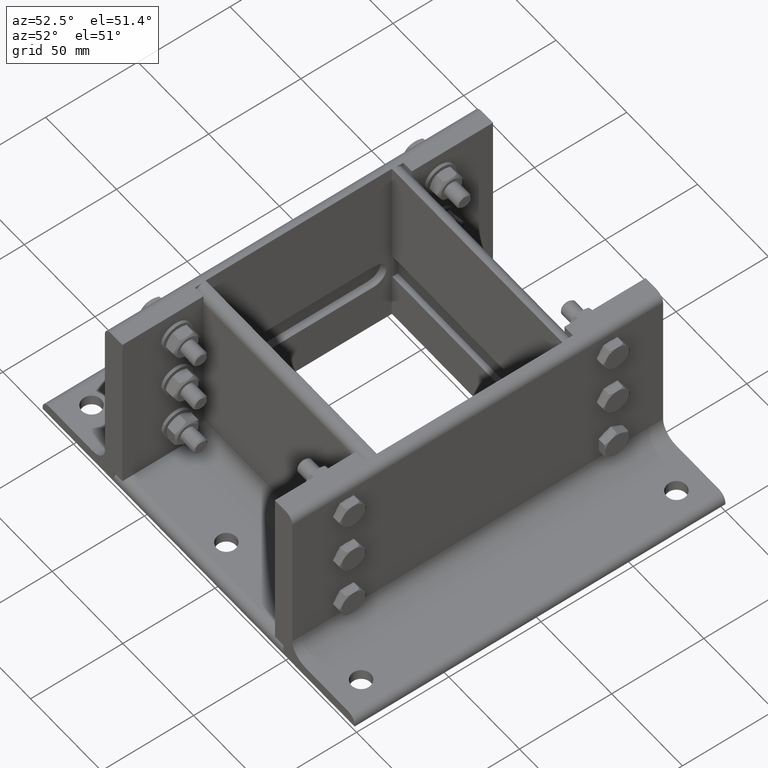
[diagram: clean part render]
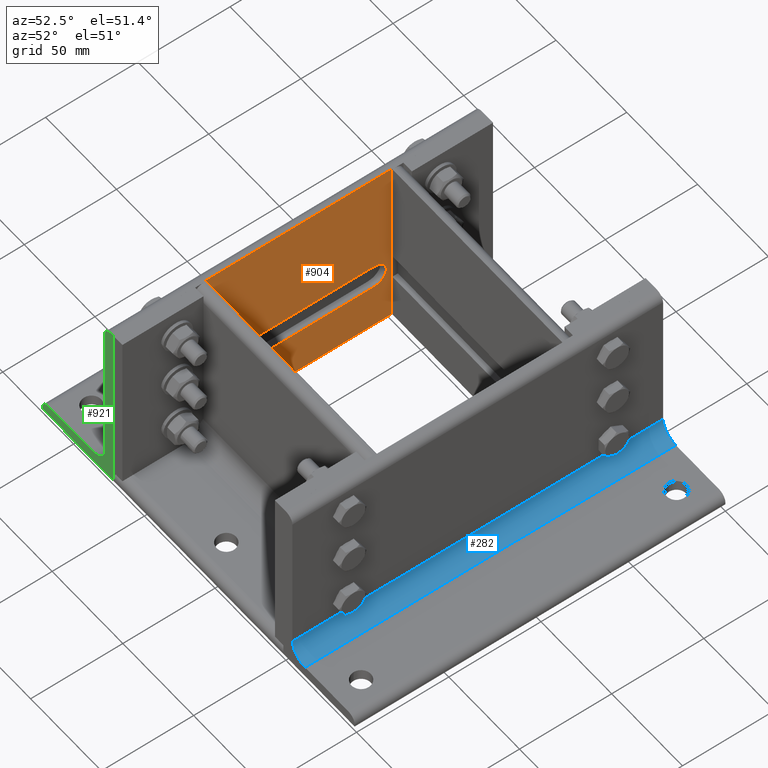
[diagram: same view with three faces highlighted in distinct colors, each labeled with its STEP entity id]
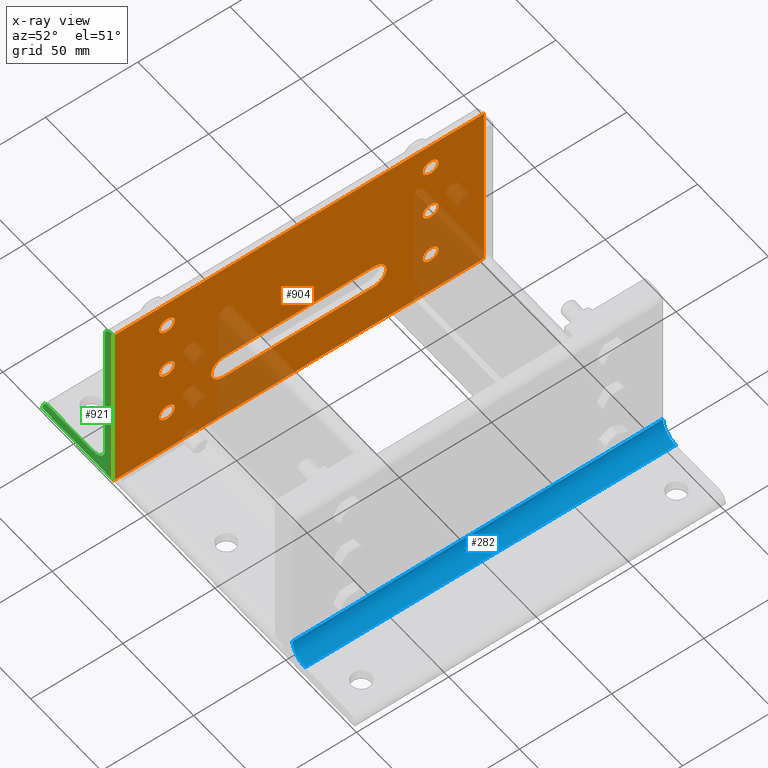
[diagram: x-ray of the same camera — body ghosted, the three highlighted faces saturated]
A machine part, auxiliary view with three faces highlighted in distinct colors.
The next image is the same camera in x-ray (body ghosted, the three faces saturated) — at least one of them is partly hidden behind the body in this view.
Their STEP definitions:

[orange] entity #904 — the highlighted planar face has unit normal (1, -0, 0).
#409=CARTESIAN_POINT('',(1.221245E-014,0.0,100.0));
#410=VERTEX_POINT('',#409);
#417=CARTESIAN_POINT('',(0.0,0.0,0.0));
#418=VERTEX_POINT('',#417);
#419=CARTESIAN_POINT('',(1.221245E-014,0.0,100.0));
#420=DIRECTION('',(0.0,0.0,-1.0));
#421=VECTOR('',#420,100.0);
#422=LINE('',#419,#421);
#423=EDGE_CURVE('',#410,#418,#422,.T.);
#473=CARTESIAN_POINT('',(1.221245E-014,201.0,100.0));
#474=VERTEX_POINT('',#473);
#481=CARTESIAN_POINT('',(1.221245E-014,0.0,100.0));
#482=DIRECTION('',(0.0,1.0,0.0));
#483=VECTOR('',#482,201.0);
#484=LINE('',#481,#483);
#485=EDGE_CURVE('',#410,#474,#484,.T.);
#507=CARTESIAN_POINT('',(7.235879E-015,172.00000000000003,59.249999999999986));
#508=VERTEX_POINT('',#507);
#509=CARTESIAN_POINT('',(0.0,172.00000000000003,55.0));
#510=DIRECTION('',(1.0,0.0,0.0));
#511=DIRECTION('',(0.0,0.0,-1.0));
#512=AXIS2_PLACEMENT_3D('',#509,#510,#511);
#513=CIRCLE('',#512,4.249999999999989);
#514=EDGE_CURVE('',#508,#508,#513,.T.);
#535=CARTESIAN_POINT('',(1.089961E-014,29.000000000000004,89.249999999999986));
#536=VERTEX_POINT('',#535);
#537=CARTESIAN_POINT('',(0.0,29.000000000000004,85.0));
#538=DIRECTION('',(1.0,0.0,0.0));
#539=DIRECTION('',(0.0,0.0,-1.0));
#540=AXIS2_PLACEMENT_3D('',#537,#538,#539);
#541=CIRCLE('',#540,4.249999999999997);
#542=EDGE_CURVE('',#536,#536,#541,.T.);
#563=CARTESIAN_POINT('',(3.572143E-015,29.000000000000014,29.250000000000004));
#564=VERTEX_POINT('',#563);
#565=CARTESIAN_POINT('',(0.0,29.000000000000014,25.0));
#566=DIRECTION('',(1.0,0.0,0.0));
#567=DIRECTION('',(0.0,0.0,-1.0));
#568=AXIS2_PLACEMENT_3D('',#565,#566,#567);
#569=CIRCLE('',#568,4.250000000000001);
#570=EDGE_CURVE('',#564,#564,#569,.T.);
#591=CARTESIAN_POINT('',(7.235879E-015,29.000000000000004,59.25));
#592=VERTEX_POINT('',#591);
#593=CARTESIAN_POINT('',(0.0,29.000000000000004,55.0));
#594=DIRECTION('',(1.0,0.0,0.0));
#595=DIRECTION('',(0.0,0.0,-1.0));
#596=AXIS2_PLACEMENT_3D('',#593,#594,#595);
#597=CIRCLE('',#596,4.25);
#598=EDGE_CURVE('',#592,#592,#597,.T.);
#619=CARTESIAN_POINT('',(3.572143E-015,172.00000000000003,29.249999999999989));
#620=VERTEX_POINT('',#619);
#621=CARTESIAN_POINT('',(0.0,172.00000000000003,25.0));
#622=DIRECTION('',(1.0,0.0,0.0));
#623=DIRECTION('',(0.0,0.0,-1.0));
#624=AXIS2_PLACEMENT_3D('',#621,#622,#623);
#625=CIRCLE('',#624,4.249999999999989);
#626=EDGE_CURVE('',#620,#620,#625,.T.);
#647=CARTESIAN_POINT('',(1.089961E-014,172.00000000000003,89.249999999999986));
#648=VERTEX_POINT('',#647);
#649=CARTESIAN_POINT('',(0.0,172.00000000000003,85.0));
#650=DIRECTION('',(1.0,0.0,0.0));
#651=DIRECTION('',(0.0,0.0,-1.0));
#652=AXIS2_PLACEMENT_3D('',#649,#650,#651);
#653=CIRCLE('',#652,4.249999999999991);
#654=EDGE_CURVE('',#648,#648,#653,.T.);
#664=CARTESIAN_POINT('',(3.175238E-015,60.0,26.000000000000032));
#665=VERTEX_POINT('',#664);
#666=CARTESIAN_POINT('',(3.175238E-015,141.0,26.0));
#667=VERTEX_POINT('',#666);
#668=CARTESIAN_POINT('',(3.175238E-015,60.0,26.000000000000032));
#669=DIRECTION('',(0.0,1.0,0.0));
#670=VECTOR('',#669,81.000000000000028);
#671=LINE('',#668,#670);
#672=EDGE_CURVE('',#665,#667,#671,.T.);
#704=CARTESIAN_POINT('',(4.884981E-015,60.0,40.000000000000014));
#705=VERTEX_POINT('',#704);
#706=CARTESIAN_POINT('',(0.0,60.0,33.000000000000028));
#707=DIRECTION('',(1.0,0.0,0.0));
#708=DIRECTION('',(0.0,0.0,1.0));
#709=AXIS2_PLACEMENT_3D('',#706,#707,#708);
#710=CIRCLE('',#709,6.999999999999998);
#711=EDGE_CURVE('',#705,#665,#710,.T.);
#737=CARTESIAN_POINT('',(4.884981E-015,141.0,40.000000000000007));
#738=VERTEX_POINT('',#737);
#739=CARTESIAN_POINT('',(4.884981E-015,141.0,40.000000000000007));
#740=DIRECTION('',(0.0,-1.0,0.0));
#741=VECTOR('',#740,81.0);
#742=LINE('',#739,#741);
#743=EDGE_CURVE('',#738,#705,#742,.T.);
#768=CARTESIAN_POINT('',(0.0,141.0,33.0));
#769=DIRECTION('',(1.0,0.0,0.0));
#770=DIRECTION('',(0.0,0.0,-1.0));
#771=AXIS2_PLACEMENT_3D('',#768,#769,#770);
#772=CIRCLE('',#771,6.999999999999991);
#773=EDGE_CURVE('',#667,#738,#772,.T.);
#805=CARTESIAN_POINT('',(0.0,201.0,0.0));
#806=VERTEX_POINT('',#805);
#807=CARTESIAN_POINT('',(0.0,0.0,0.0));
#808=DIRECTION('',(0.0,1.0,0.0));
#809=VECTOR('',#808,201.0);
#810=LINE('',#807,#809);
#811=EDGE_CURVE('',#418,#806,#810,.T.);
#864=CARTESIAN_POINT('',(0.0,0.0,0.0));
#865=DIRECTION('',(-1.0,0.0,0.0));
#866=DIRECTION('',(0.0,0.0,1.0));
#867=AXIS2_PLACEMENT_3D('',#864,#865,#866);
#868=PLANE('',#867);
#869=ORIENTED_EDGE('',*,*,#423,.F.);
#870=ORIENTED_EDGE('',*,*,#485,.T.);
#871=CARTESIAN_POINT('',(-1.577722E-030,201.0,0.0));
#872=DIRECTION('',(0.0,0.0,1.0));
#873=VECTOR('',#872,100.0);
#874=LINE('',#871,#873);
#875=EDGE_CURVE('',#806,#474,#874,.T.);
#876=ORIENTED_EDGE('',*,*,#875,.F.);
#877=ORIENTED_EDGE('',*,*,#811,.F.);
#878=EDGE_LOOP('',(#869,#870,#876,#877));
#879=FACE_OUTER_BOUND('',#878,.T.);
#880=ORIENTED_EDGE('',*,*,#514,.T.);
#881=EDGE_LOOP('',(#880));
#882=FACE_BOUND('',#881,.T.);
#883=ORIENTED_EDGE('',*,*,#542,.T.);
#884=EDGE_LOOP('',(#883));
#885=FACE_BOUND('',#884,.T.);
#886=ORIENTED_EDGE('',*,*,#570,.T.);
#887=EDGE_LOOP('',(#886));
#888=FACE_BOUND('',#887,.T.);
#889=ORIENTED_EDGE('',*,*,#598,.T.);
#890=EDGE_LOOP('',(#889));
#891=FACE_BOUND('',#890,.T.);
#892=ORIENTED_EDGE('',*,*,#626,.T.);
#893=EDGE_LOOP('',(#892));
#894=FACE_BOUND('',#893,.T.);
#895=ORIENTED_EDGE('',*,*,#654,.T.);
#896=EDGE_LOOP('',(#895));
#897=FACE_BOUND('',#896,.T.);
#898=ORIENTED_EDGE('',*,*,#672,.T.);
#899=ORIENTED_EDGE('',*,*,#773,.T.);
#900=ORIENTED_EDGE('',*,*,#743,.T.);
#901=ORIENTED_EDGE('',*,*,#711,.T.);
#902=EDGE_LOOP('',(#898,#899,#900,#901));
#903=FACE_BOUND('',#902,.T.);
#904=ADVANCED_FACE('',(#879,#882,#885,#888,#891,#894,#897,#903),#868,.T.);

[blue] entity #282 — the highlighted cylindrical surface (edge-blend (fillet) strip) has radius 9 mm, axis along (0, 1, -0).
#241=CARTESIAN_POINT('',(15.0,0.0,15.0));
#242=DIRECTION('',(0.0,1.0,0.0));
#243=DIRECTION('',(-0.707106781186548,0.0,-0.707106781186547));
#244=AXIS2_PLACEMENT_3D('',#241,#242,#243);
#245=CYLINDRICAL_SURFACE('',#244,9.0);
#246=CARTESIAN_POINT('',(5.999999999999998,0.0,15.000000000000002));
#247=VERTEX_POINT('',#246);
#248=CARTESIAN_POINT('',(15.0,0.0,6.000000000000001));
#249=VERTEX_POINT('',#248);
#250=CARTESIAN_POINT('',(15.0,0.0,15.0));
#251=DIRECTION('',(0.0,-1.0,0.0));
#252=DIRECTION('',(-0.707106781186548,0.0,-0.707106781186547));
#253=AXIS2_PLACEMENT_3D('',#250,#251,#252);
#254=CIRCLE('',#253,9.0);
#255=EDGE_CURVE('',#247,#249,#254,.T.);
#256=ORIENTED_EDGE('',*,*,#255,.T.);
#257=CARTESIAN_POINT('',(15.0,201.0,6.000000000000001));
#258=VERTEX_POINT('',#257);
#259=CARTESIAN_POINT('',(14.999999999999998,0.0,6.000000000000001));
#260=DIRECTION('',(0.0,1.0,0.0));
#261=VECTOR('',#260,201.0);
#262=LINE('',#259,#261);
#263=EDGE_CURVE('',#249,#258,#262,.T.);
#264=ORIENTED_EDGE('',*,*,#263,.T.);
#265=CARTESIAN_POINT('',(5.999999999999998,201.0,15.000000000000002));
#266=VERTEX_POINT('',#265);
#267=CARTESIAN_POINT('',(15.0,201.0,15.0));
#268=DIRECTION('',(0.0,1.0,0.0));
#269=DIRECTION('',(-0.707106781186548,0.0,-0.707106781186547));
#270=AXIS2_PLACEMENT_3D('',#267,#268,#269);
#271=CIRCLE('',#270,9.0);
#272=EDGE_CURVE('',#258,#266,#271,.T.);
#273=ORIENTED_EDGE('',*,*,#272,.T.);
#274=CARTESIAN_POINT('',(5.999999999999998,201.0,15.000000000000002));
#275=DIRECTION('',(0.0,-1.0,0.0));
#276=VECTOR('',#275,201.0);
#277=LINE('',#274,#276);
#278=EDGE_CURVE('',#266,#247,#277,.T.);
#279=ORIENTED_EDGE('',*,*,#278,.T.);
#280=EDGE_LOOP('',(#256,#264,#273,#279));
#281=FACE_OUTER_BOUND('',#280,.T.);
#282=ADVANCED_FACE('',(#281),#245,.F.);

[green] entity #921 — the highlighted planar face has unit normal (-0, -1, -0).
#257=CARTESIAN_POINT('',(15.0,201.0,6.000000000000001));
#258=VERTEX_POINT('',#257);
#265=CARTESIAN_POINT('',(5.999999999999998,201.0,15.000000000000002));
#266=VERTEX_POINT('',#265);
#267=CARTESIAN_POINT('',(15.0,201.0,15.0));
#268=DIRECTION('',(0.0,1.0,0.0));
#269=DIRECTION('',(-0.707106781186548,0.0,-0.707106781186547));
#270=AXIS2_PLACEMENT_3D('',#267,#268,#269);
#271=CIRCLE('',#270,9.0);
#272=EDGE_CURVE('',#258,#266,#271,.T.);
#297=CARTESIAN_POINT('',(45.499999999999986,201.0,5.999999999999991));
#298=VERTEX_POINT('',#297);
#305=CARTESIAN_POINT('',(15.0,201.0,6.0));
#306=DIRECTION('',(1.0,0.0,0.0));
#307=VECTOR('',#306,30.499999999999993);
#308=LINE('',#305,#307);
#309=EDGE_CURVE('',#258,#298,#308,.T.);
#325=CARTESIAN_POINT('',(49.999999999999993,201.0,1.499999999999991));
#326=VERTEX_POINT('',#325);
#327=CARTESIAN_POINT('',(45.499999999999986,201.0,1.499999999999991));
#328=DIRECTION('',(0.0,-1.0,0.0));
#329=DIRECTION('',(0.707106781186547,0.0,0.707106781186548));
#330=AXIS2_PLACEMENT_3D('',#327,#328,#329);
#331=CIRCLE('',#330,4.5);
#332=EDGE_CURVE('',#326,#298,#331,.T.);
#367=CARTESIAN_POINT('',(49.999999999999993,201.0,-1.776357E-014));
#368=VERTEX_POINT('',#367);
#375=CARTESIAN_POINT('',(49.999999999999993,201.0,1.499999999999991));
#376=DIRECTION('',(0.0,0.0,-1.0));
#377=VECTOR('',#376,1.5);
#378=LINE('',#375,#377);
#379=EDGE_CURVE('',#326,#368,#378,.T.);
#440=CARTESIAN_POINT('',(6.000000000000022,201.0,95.5));
#441=VERTEX_POINT('',#440);
#442=CARTESIAN_POINT('',(1.500000000000022,201.0,100.0));
#443=VERTEX_POINT('',#442);
#444=CARTESIAN_POINT('',(1.500000000000022,201.0,95.5));
#445=DIRECTION('',(0.0,-1.0,0.0));
#446=DIRECTION('',(0.707106781186548,0.0,0.707106781186547));
#447=AXIS2_PLACEMENT_3D('',#444,#445,#446);
#448=CIRCLE('',#447,4.5);
#449=EDGE_CURVE('',#441,#443,#448,.T.);
#473=CARTESIAN_POINT('',(1.221245E-014,201.0,100.0));
#474=VERTEX_POINT('',#473);
#475=CARTESIAN_POINT('',(1.243450E-014,201.0,100.0));
#476=DIRECTION('',(1.0,0.0,0.0));
#477=VECTOR('',#476,1.50000000000001);
#478=LINE('',#475,#477);
#479=EDGE_CURVE('',#474,#443,#478,.T.);
#805=CARTESIAN_POINT('',(0.0,201.0,0.0));
#806=VERTEX_POINT('',#805);
#813=CARTESIAN_POINT('',(49.999999999999993,201.0,-9.228729E-015));
#814=DIRECTION('',(-1.0,0.0,0.0));
#815=VECTOR('',#814,49.999999999999993);
#816=LINE('',#813,#815);
#817=EDGE_CURVE('',#368,#806,#816,.T.);
#835=CARTESIAN_POINT('',(6.000000000000022,201.0,95.500000000000014));
#836=DIRECTION('',(0.0,0.0,-1.0));
#837=VECTOR('',#836,80.500000000000014);
#838=LINE('',#835,#837);
#839=EDGE_CURVE('',#441,#266,#838,.T.);
#871=CARTESIAN_POINT('',(-1.577722E-030,201.0,0.0));
#872=DIRECTION('',(0.0,0.0,1.0));
#873=VECTOR('',#872,100.0);
#874=LINE('',#871,#873);
#875=EDGE_CURVE('',#806,#474,#874,.T.);
#905=CARTESIAN_POINT('',(11.213333333333331,201.0,36.213333333333331));
#906=DIRECTION('',(0.0,1.0,0.0));
#907=DIRECTION('',(0.0,0.0,1.0));
#908=AXIS2_PLACEMENT_3D('',#905,#906,#907);
#909=PLANE('',#908);
#910=ORIENTED_EDGE('',*,*,#332,.F.);
#911=ORIENTED_EDGE('',*,*,#379,.T.);
#912=ORIENTED_EDGE('',*,*,#817,.T.);
#913=ORIENTED_EDGE('',*,*,#875,.T.);
#914=ORIENTED_EDGE('',*,*,#479,.T.);
#915=ORIENTED_EDGE('',*,*,#449,.F.);
#916=ORIENTED_EDGE('',*,*,#839,.T.);
#917=ORIENTED_EDGE('',*,*,#272,.F.);
#918=ORIENTED_EDGE('',*,*,#309,.T.);
#919=EDGE_LOOP('',(#910,#911,#912,#913,#914,#915,#916,#917,#918));
#920=FACE_OUTER_BOUND('',#919,.T.);
#921=ADVANCED_FACE('',(#920),#909,.T.);